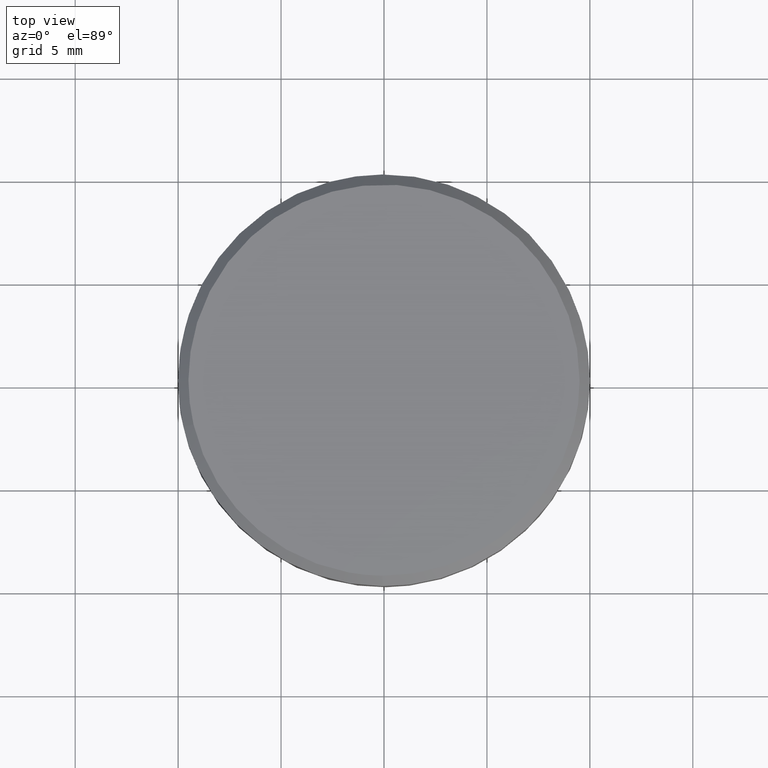
[diagram: clean part render]
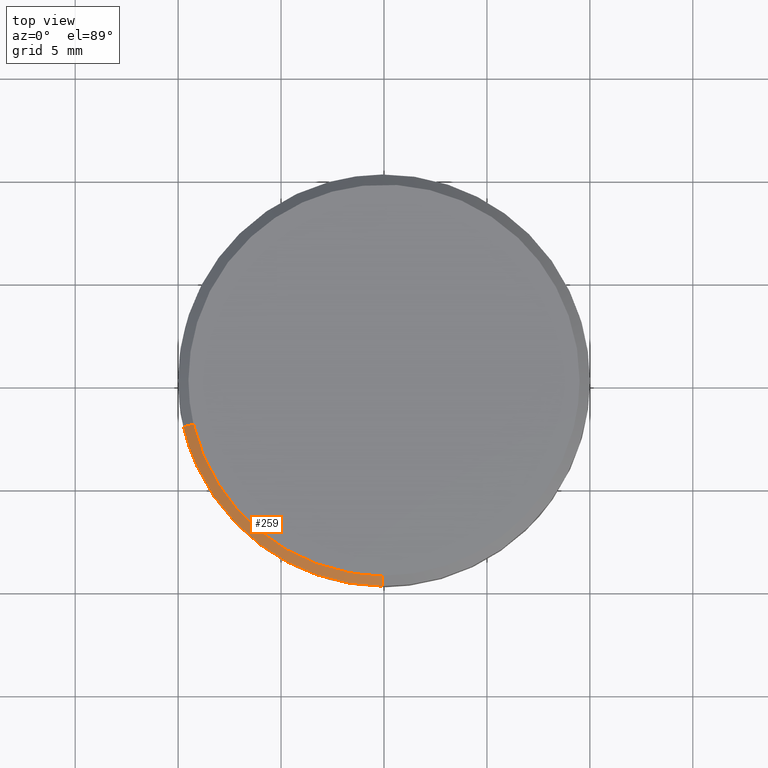
[diagram: same view with one face highlighted and labeled with its STEP entity id]
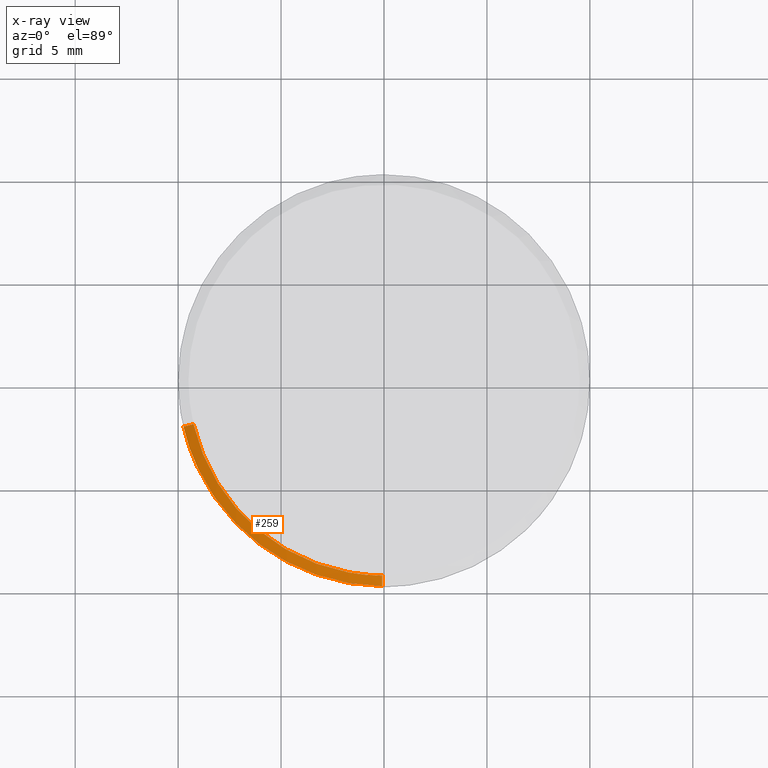
[diagram: x-ray of the same camera — body ghosted, the highlighted face saturated]
A machine part, top view. The second image highlights one B-rep face of the part: STEP entity #259.
The next image is the same camera in x-ray: the body ghosted, the highlighted face saturated — about 0% of this face is hidden behind the body in this view.
In plain terms, the highlighted face is a freeform B-spline surface patch.
Its self-contained STEP definition (entity closure, byte-faithful):
#70=CARTESIAN_POINT('',(-9.742181531784778,-2.256080451086446,10.999999999998970));
#71=VERTEX_POINT('',#70);
#87=CARTESIAN_POINT('',(-9.255072455196380,-2.143276428524653,11.499999999999879));
#88=VERTEX_POINT('',#87);
#89=CARTESIAN_POINT('',(-9.255072455196380,-2.143276428524653,11.499999999999879));
#90=CARTESIAN_POINT('',(-9.742181531784778,-2.256080451086446,10.999999999998970));
#91=QUASI_UNIFORM_CURVE('',1,(#89,#90),.UNSPECIFIED.,.F.,.U.);
#92=EDGE_CURVE('',#88,#71,#91,.T.);
#126=CARTESIAN_POINT('',(-0.082902087252672,-9.499638269111923,11.499999999997639));
#127=VERTEX_POINT('',#126);
#143=CARTESIAN_POINT('',(-0.087265355013846,-9.999619230645545,10.999999999996030));
#144=VERTEX_POINT('',#143);
#145=CARTESIAN_POINT('',(-0.082902087252672,-9.499638269111923,11.499999999997639));
#146=CARTESIAN_POINT('',(-0.087265355013846,-9.999619230645545,10.999999999996030));
#147=QUASI_UNIFORM_CURVE('',1,(#145,#146),.UNSPECIFIED.,.F.,.U.);
#148=EDGE_CURVE('',#127,#144,#147,.T.);
#215=CARTESIAN_POINT('',(-0.082793005540822,-9.487138745071267,11.512500000000120));
#216=CARTESIAN_POINT('',(-7.556664895367825,-9.421915253203679,11.512500000000120));
#217=CARTESIAN_POINT('',(-9.242894728281831,-2.140456327958789,11.512500000000115));
#218=CARTESIAN_POINT('',(-0.087377163719812,-10.012431242780981,10.987187500000120));
#219=CARTESIAN_POINT('',(-7.975069167077800,-9.943596397493447,10.987187500000118));
#220=CARTESIAN_POINT('',(-9.754663701873520,-2.258971054154414,10.987187500000111));
#228=(BOUNDED_SURFACE()B_SPLINE_SURFACE(2,1,((#215,#218),(#216,#219),(#217,#220)),.UNSPECIFIED.,.F.,.F.,.U.)B_SPLINE_SURFACE_WITH_KNOTS((3,3),(2,2),(0.0,13.874467244310500),(0.0,1.0),.UNSPECIFIED.)GEOMETRIC_REPRESENTATION_ITEM()RATIONAL_B_SPLINE_SURFACE(((1.0,1.0),(0.753969696196700,0.753969696196700),(0.921270302782944,0.921270302782944)))REPRESENTATION_ITEM('')SURFACE());
#229=CARTESIAN_POINT('',(-0.087265355013846,-9.999619230645545,10.999999999996021));
#230=CARTESIAN_POINT('',(-7.964864184835776,-9.930872467097576,11.000000000000117));
#231=CARTESIAN_POINT('',(-9.742181531784778,-2.256080451086446,10.999999999998973));
#239=(BOUNDED_CURVE()B_SPLINE_CURVE(2,(#229,#230,#231),.UNSPECIFIED.,.F.,.U.)B_SPLINE_CURVE_WITH_KNOTS((3,3),(0.751539894336047,0.961422971784283),.UNSPECIFIED.)CURVE()GEOMETRIC_REPRESENTATION_ITEM()RATIONAL_B_SPLINE_CURVE((0.996414028097954,0.753549905437045,0.923556557442256))REPRESENTATION_ITEM(''));
#240=EDGE_CURVE('',#144,#71,#239,.T.);
#241=ORIENTED_EDGE('',*,*,#240,.F.);
#242=ORIENTED_EDGE('',*,*,#148,.F.);
#243=CARTESIAN_POINT('',(-9.255072455196380,-2.143276428524653,11.499999999999874));
#244=CARTESIAN_POINT('',(-7.566620975602279,-9.434328843759149,11.500000000000119));
#245=CARTESIAN_POINT('',(-0.082902087252672,-9.499638269111923,11.499999999997639));
#253=(BOUNDED_CURVE()B_SPLINE_CURVE(2,(#243,#244,#245),.UNSPECIFIED.,.F.,.U.)B_SPLINE_CURVE_WITH_KNOTS((3,3),(0.538577028215460,0.748460105664342),.UNSPECIFIED.)CURVE()GEOMETRIC_REPRESENTATION_ITEM()RATIONAL_B_SPLINE_CURVE((0.923556557442673,0.753549905436432,0.996414028098854))REPRESENTATION_ITEM(''));
#254=EDGE_CURVE('',#88,#127,#253,.T.);
#255=ORIENTED_EDGE('',*,*,#254,.F.);
#256=ORIENTED_EDGE('',*,*,#92,.T.);
#257=EDGE_LOOP('',(#241,#242,#255,#256));
#258=FACE_OUTER_BOUND('',#257,.T.);
#259=ADVANCED_FACE('',(#258),#228,.T.);